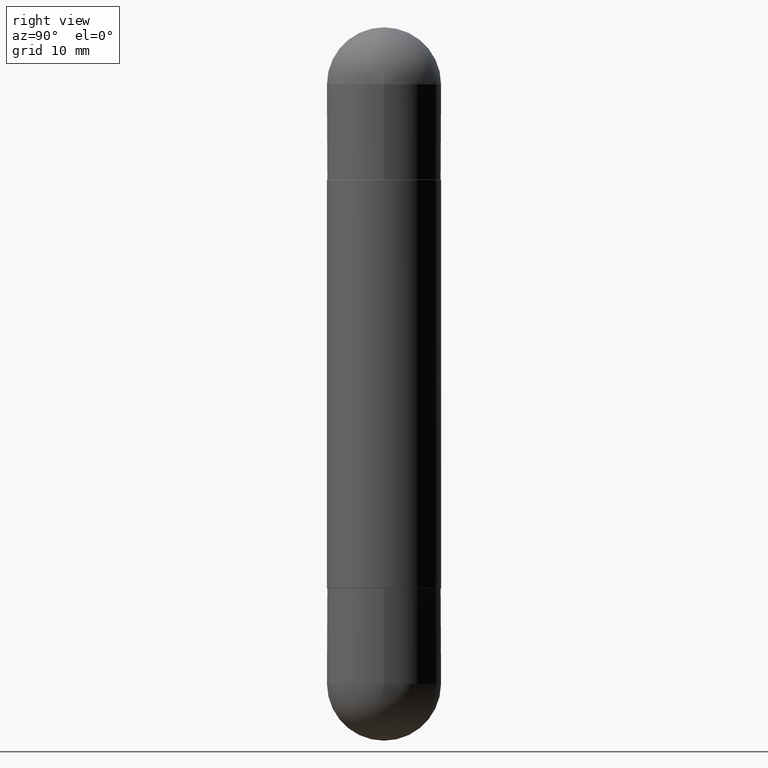
[diagram: clean part render]
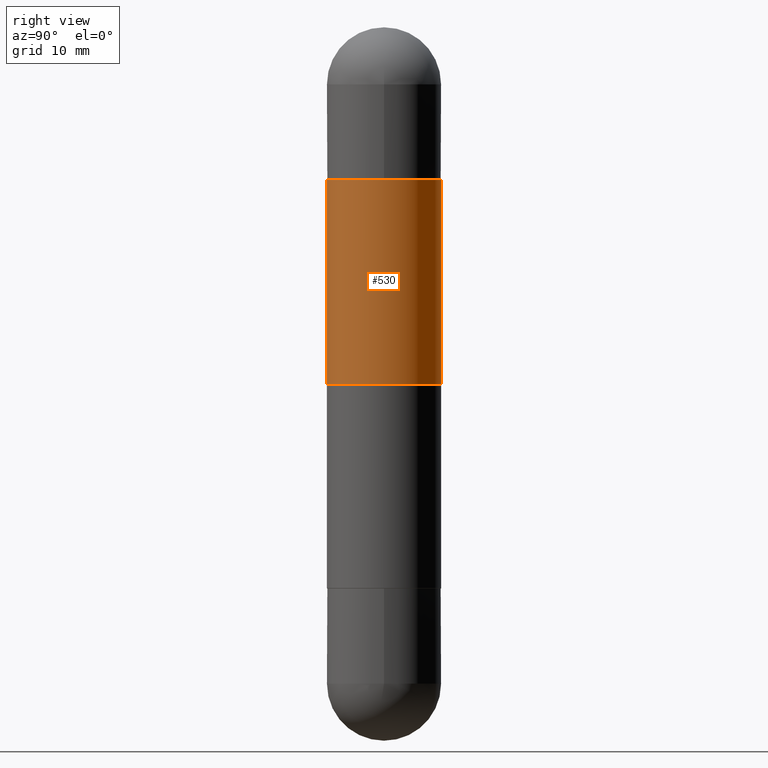
[diagram: same view with one face highlighted and labeled with its STEP entity id]
A machine part, right view. The second image highlights one B-rep face of the part: STEP entity #530.
In plain terms, the highlighted cylindrical surface (partial cylindrical patch) has radius 5.9995 mm, axis along (-0, 0, -1).
Its self-contained STEP definition (entity closure, byte-faithful):
#11 = CYLINDRICAL_SURFACE ( 'NONE', #145, 0.2362000000000001598 ) ;
#52 = CARTESIAN_POINT ( 'NONE',  ( 1.620449627073636656E-15, 0.2362000000000001598, -2.952799999999998537 ) ) ;
#67 = DIRECTION ( 'NONE',  ( -2.444390095646794193E-29, 3.493026113730442947E-15, -1.000000000000000000 ) ) ;
#91 = ORIENTED_EDGE ( 'NONE', *, *, #447, .T. ) ;
#145 = AXIS2_PLACEMENT_3D ( 'NONE', #818, #504, #570 ) ;
#169 = VERTEX_POINT ( 'NONE', #453 ) ;
#202 = FACE_OUTER_BOUND ( 'NONE', #230, .T. ) ;
#205 = CARTESIAN_POINT ( 'NONE',  ( -1.649375784469497117E-15, -0.2362000000000001598, -2.952800000000000757 ) ) ;
#224 = EDGE_CURVE ( 'NONE', #594, #169, #587, .T. ) ;
#230 = EDGE_LOOP ( 'NONE', ( #481, #563, #91, #509 ) ) ;
#367 = VERTEX_POINT ( 'NONE', #566 ) ;
#395 = LINE ( 'NONE', #205, #519 ) ;
#404 = VECTOR ( 'NONE', #67, 39.37007874015748143 ) ;
#418 = DIRECTION ( 'NONE',  ( -0.000000000000000000, -0.000000000000000000, -1.000000000000000000 ) ) ;
#423 = EDGE_CURVE ( 'NONE', #560, #594, #636, .T. ) ;
#446 = CARTESIAN_POINT ( 'NONE',  ( 1.620449627073694243E-15, 0.2361999999999921385, -0.6308999999999992392 ) ) ;
#447 = EDGE_CURVE ( 'NONE', #367, #169, #395, .T. ) ;
#453 = CARTESIAN_POINT ( 'NONE',  ( -1.649375784469450574E-15, -0.2362000000000053224, -1.476399999999999935 ) ) ;
#467 = CIRCLE ( 'NONE', #799, 0.2362000000000002709 ) ;
#469 = DIRECTION ( 'NONE',  ( -1.000000000000000000, 0.000000000000000000, 0.000000000000000000 ) ) ;
#481 = ORIENTED_EDGE ( 'NONE', *, *, #423, .F. ) ;
#504 = DIRECTION ( 'NONE',  ( -2.444390095646794193E-29, 3.493026113730442947E-15, -1.000000000000000000 ) ) ;
#509 = ORIENTED_EDGE ( 'NONE', *, *, #224, .F. ) ;
#519 = VECTOR ( 'NONE', #584, 39.37007874015748143 ) ;
#530 = ADVANCED_FACE ( 'NONE', ( #202 ), #11, .T. ) ;
#560 = VERTEX_POINT ( 'NONE', #446 ) ;
#563 = ORIENTED_EDGE ( 'NONE', *, *, #788, .F. ) ;
#566 = CARTESIAN_POINT ( 'NONE',  ( -1.649375784469441108E-15, -0.2362000000000084032, -0.6309000000000009045 ) ) ;
#570 = DIRECTION ( 'NONE',  ( -6.982962677686265922E-15, -1.000000000000000000, -4.626330217890366181E-15 ) ) ;
#584 = DIRECTION ( 'NONE',  ( -2.444390095646794193E-29, 3.493026113730442947E-15, -1.000000000000000000 ) ) ;
#587 = CIRCLE ( 'NONE', #773, 0.2362000000000001598 ) ;
#594 = VERTEX_POINT ( 'NONE', #647 ) ;
#636 = LINE ( 'NONE', #52, #404 ) ;
#647 = CARTESIAN_POINT ( 'NONE',  ( 1.620449627073693651E-15, 0.2361999999999950528, -1.476399999999999935 ) ) ;
#672 = CARTESIAN_POINT ( 'NONE',  ( 3.608897537212926545E-29, -5.157103754311625220E-15, -1.476399999999999935 ) ) ;
#686 = CARTESIAN_POINT ( 'NONE',  ( 5.675629363082290113E-29, -8.110457333470714388E-15, -0.6309000000000001274 ) ) ;
#757 = DIRECTION ( 'NONE',  ( 2.444390095646794193E-29, -3.493026113730442947E-15, 1.000000000000000000 ) ) ;
#773 = AXIS2_PLACEMENT_3D ( 'NONE', #672, #418, #469 ) ;
#788 = EDGE_CURVE ( 'NONE', #367, #560, #467, .T. ) ;
#799 = AXIS2_PLACEMENT_3D ( 'NONE', #686, #757, #801 ) ;
#801 = DIRECTION ( 'NONE',  ( -6.982962677686265922E-15, -1.000000000000000000, -3.469747663417773058E-15 ) ) ;
#818 = CARTESIAN_POINT ( 'NONE',  ( 0.000000000000000000, 0.000000000000000000, -2.952799999999999869 ) ) ;